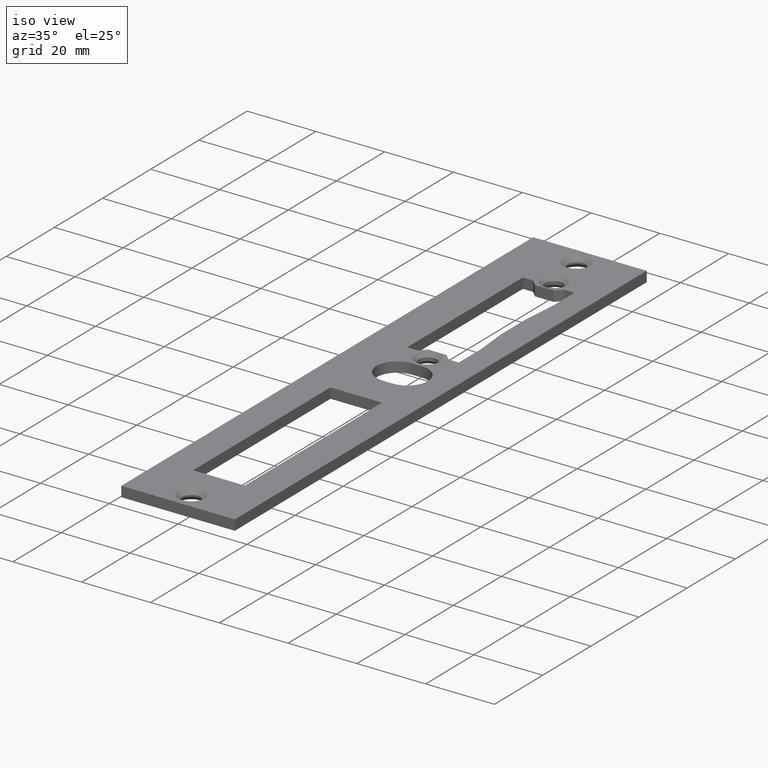
[diagram: clean part render]
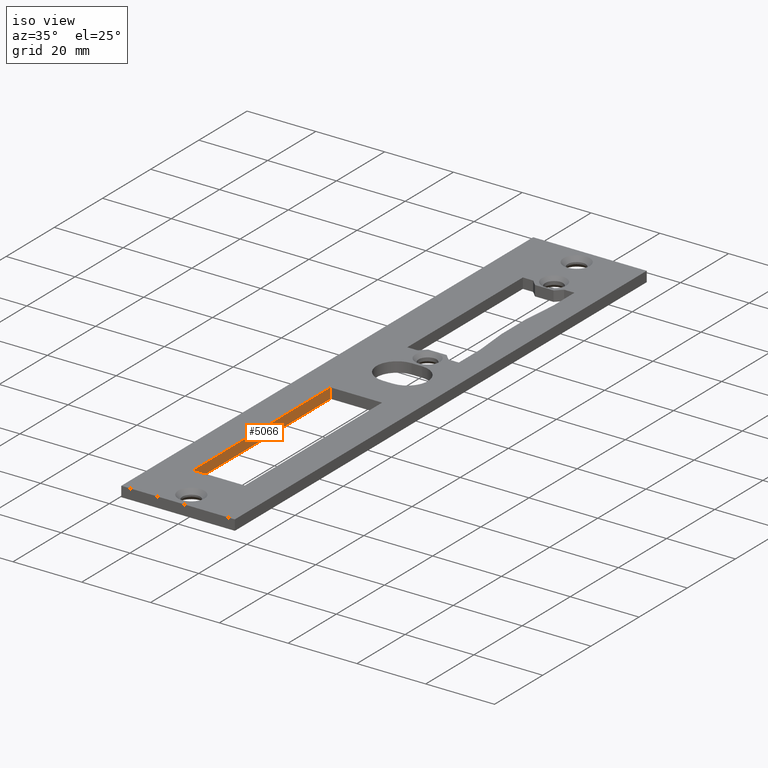
[diagram: same view with one face highlighted and labeled with its STEP entity id]
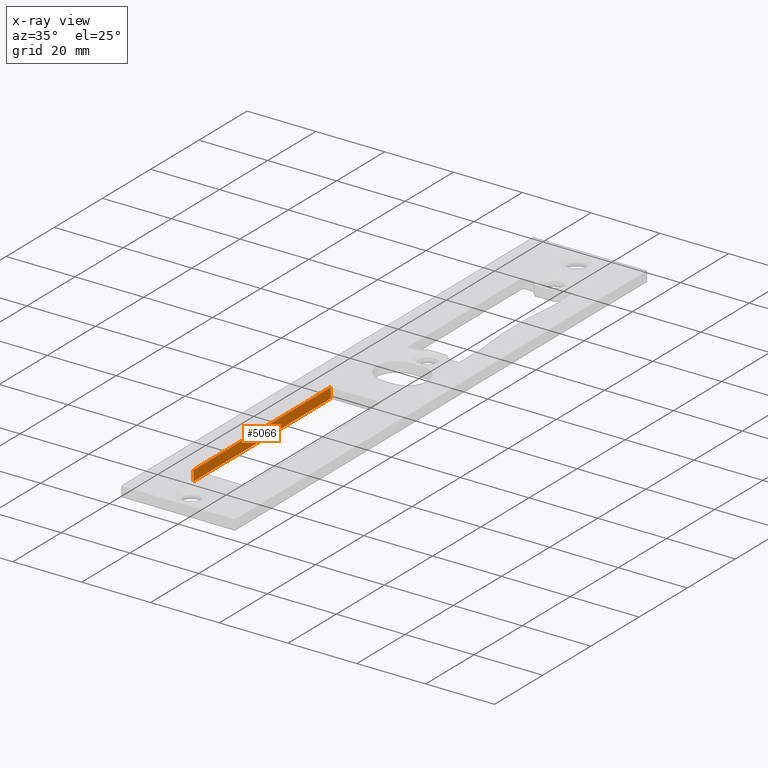
[diagram: x-ray of the same camera — body ghosted, the highlighted face saturated]
A machine part, iso view. The second image highlights one B-rep face of the part: STEP entity #5066.
The next image is the same camera in x-ray: the body ghosted, the highlighted face saturated — about 0% of this face is hidden behind the body in this view.
In plain terms, the highlighted planar face has unit normal (1, -0, 0).
Its self-contained STEP definition (entity closure, byte-faithful):
#245 = VERTEX_POINT ( 'NONE', #9052 ) ;
#346 = VECTOR ( 'NONE', #6008, 1000.000000000000000 ) ;
#457 = PLANE ( 'NONE',  #2201 ) ;
#589 = DIRECTION ( 'NONE',  ( -1.217349807703023841E-16, -1.000000000000000000, 0.000000000000000000 ) ) ;
#629 = EDGE_CURVE ( 'NONE', #245, #6595, #8343, .T. ) ;
#813 = EDGE_LOOP ( 'NONE', ( #4325, #8568, #5092, #2139 ) ) ;
#1023 = LINE ( 'NONE', #6942, #5556 ) ;
#1396 = VECTOR ( 'NONE', #589, 1000.000000000000000 ) ;
#1562 = EDGE_CURVE ( 'NONE', #2001, #6595, #5908, .T. ) ;
#1957 = CARTESIAN_POINT ( 'NONE',  ( -7.500000000000007994, 9.130123557772689781E-16, 0.000000000000000000 ) ) ;
#2001 = VERTEX_POINT ( 'NONE', #3169 ) ;
#2052 = DIRECTION ( 'NONE',  ( -0.000000000000000000, -0.000000000000000000, -1.000000000000000000 ) ) ;
#2139 = ORIENTED_EDGE ( 'NONE', *, *, #629, .T. ) ;
#2201 = AXIS2_PLACEMENT_3D ( 'NONE', #9041, #2657, #3399 ) ;
#2348 = VECTOR ( 'NONE', #2052, 1000.000000000000000 ) ;
#2407 = CARTESIAN_POINT ( 'NONE',  ( -7.500000000000000000, 73.99999999999994316, 3.000000000000000888 ) ) ;
#2476 = LINE ( 'NONE', #2407, #346 ) ;
#2635 = DIRECTION ( 'NONE',  ( -1.217349807703023841E-16, -1.000000000000000000, 0.000000000000000000 ) ) ;
#2657 = DIRECTION ( 'NONE',  ( 1.000000000000000000, -1.217349807703023841E-16, 0.000000000000000000 ) ) ;
#3169 = CARTESIAN_POINT ( 'NONE',  ( -7.500000000000000000, 73.99999999999994316, 0.000000000000000000 ) ) ;
#3399 = DIRECTION ( 'NONE',  ( 1.217349807703023841E-16, 1.000000000000000000, 0.000000000000000000 ) ) ;
#4325 = ORIENTED_EDGE ( 'NONE', *, *, #1562, .F. ) ;
#4359 = EDGE_CURVE ( 'NONE', #7424, #245, #1023, .T. ) ;
#4666 = CARTESIAN_POINT ( 'NONE',  ( -7.500000000000000000, 73.99999999999994316, 3.000000000000000888 ) ) ;
#5066 = ADVANCED_FACE ( 'NONE', ( #5317 ), #457, .T. ) ;
#5092 = ORIENTED_EDGE ( 'NONE', *, *, #4359, .T. ) ;
#5317 = FACE_OUTER_BOUND ( 'NONE', #813, .T. ) ;
#5556 = VECTOR ( 'NONE', #2635, 1000.000000000000000 ) ;
#5908 = LINE ( 'NONE', #1957, #1396 ) ;
#6008 = DIRECTION ( 'NONE',  ( -0.000000000000000000, -0.000000000000000000, -1.000000000000000000 ) ) ;
#6246 = EDGE_CURVE ( 'NONE', #7424, #2001, #2476, .T. ) ;
#6595 = VERTEX_POINT ( 'NONE', #8095 ) ;
#6942 = CARTESIAN_POINT ( 'NONE',  ( -7.500000000000007994, 9.130123557772689781E-16, 3.000000000000000888 ) ) ;
#7424 = VERTEX_POINT ( 'NONE', #4666 ) ;
#7796 = CARTESIAN_POINT ( 'NONE',  ( -7.500000000000007105, 17.00000000000000000, 3.000000000000000888 ) ) ;
#8095 = CARTESIAN_POINT ( 'NONE',  ( -7.500000000000007105, 17.00000000000000000, 0.000000000000000000 ) ) ;
#8343 = LINE ( 'NONE', #7796, #2348 ) ;
#8568 = ORIENTED_EDGE ( 'NONE', *, *, #6246, .F. ) ;
#9041 = CARTESIAN_POINT ( 'NONE',  ( -7.500000000000007994, 9.130123557772689781E-16, 3.000000000000000888 ) ) ;
#9052 = CARTESIAN_POINT ( 'NONE',  ( -7.500000000000007105, 17.00000000000000000, 3.000000000000000888 ) ) ;